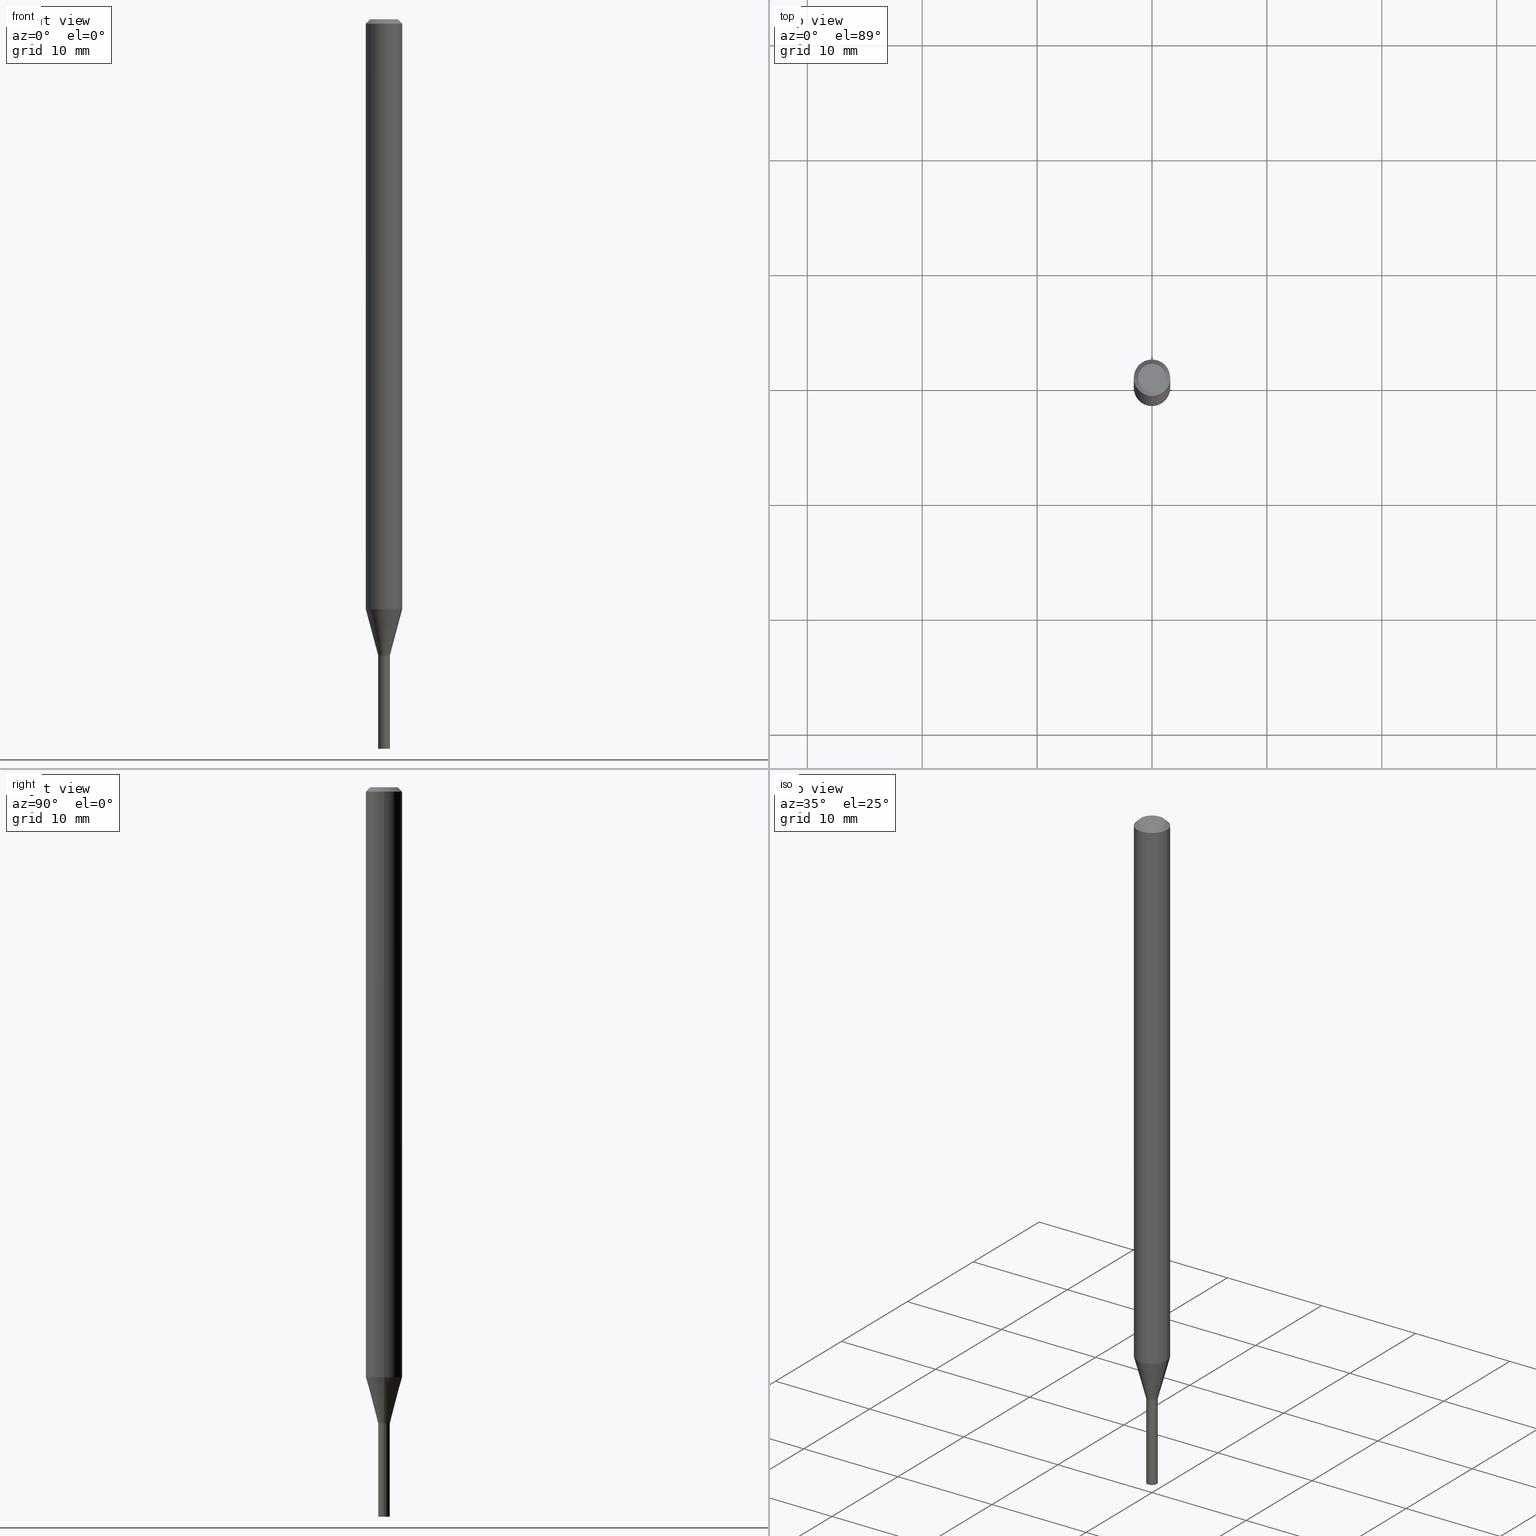
[diagram: canonical four-view strip — front | top / right | iso, engineering-drawing reading convention]
A machine part, canonical four-view strip (front | top / right | iso — engineering-drawing reading convention). The complete STEP part file that produces these views, byte-faithful:
ISO-10303-21;
HEADER;
FILE_DESCRIPTION (( 'STEP AP203' ),
    '1' );
FILE_NAME ('01262.STEP',
    '2024-03-20T00:42:51',
    ( '' ),
    ( '' ),
    'SwSTEP 2.0',
    'SolidWorks 2023',
    '' );
FILE_SCHEMA (( 'CONFIG_CONTROL_DESIGN' ));
ENDSEC;

DATA;
#1 = DIRECTION ( 'NONE',  ( -1.000000000000000000, 6.982962677686266711E-15, 0.000000000000000000 ) ) ;
#2 = ADVANCED_FACE ( 'NONE', ( #203 ), #120, .T. ) ;
#3 = AXIS2_PLACEMENT_3D ( 'NONE', #351, #27, #356 ) ;
#4 = CIRCLE ( 'NONE', #327, 0.02000000000000000042 ) ;
#5 = DIRECTION ( 'NONE',  ( -1.000000000000000000, 6.982962677686265922E-15, -4.876176775795935793E-29 ) ) ;
#6 = LINE ( 'NONE', #110, #144 ) ;
#7 = ADVANCED_FACE ( 'NONE', ( #345 ), #17, .F. ) ;
#8 = CARTESIAN_POINT ( 'NONE',  ( 3.316907271900976096E-16, 0.04749999999999999362, -4.031230090434019551E-16 ) ) ;
#9 = VERTEX_POINT ( 'NONE', #421 ) ;
#10 = CARTESIAN_POINT ( 'NONE',  ( -0.02000000000000000042, -8.027957785740939971E-15, -2.180000000000000160 ) ) ;
#11 = AXIS2_PLACEMENT_3D ( 'NONE', #242, #55, #233 ) ;
#12 = APPROVAL_PERSON_ORGANIZATION ( #454, #213, #449 ) ;
#13 = EDGE_LOOP ( 'NONE', ( #414, #155, #272, #370 ) ) ;
#14 = PERSON_AND_ORGANIZATION ( #337, #191 ) ;
#15 = DIRECTION ( 'NONE',  ( -2.445468806185136597E-29, 3.491481338843145583E-15, 1.000000000000000000 ) ) ;
#16 = EDGE_LOOP ( 'NONE', ( #300, #232, #197, #378 ) ) ;
#17 = CYLINDRICAL_SURFACE ( 'NONE', #240, 0.01999999999999992409 ) ;
#18 = ORIENTED_EDGE ( 'NONE', *, *, #84, .F. ) ;
#19 = DATE_AND_TIME ( #57, #254 ) ;
#20 = VECTOR ( 'NONE', #179, 39.37007874015748143 ) ;
#21 = CARTESIAN_POINT ( 'NONE',  ( 4.943240909580767453E-29, -7.057637924292802386E-15, -2.021387840678321890 ) ) ;
#22 = ORIENTED_EDGE ( 'NONE', *, *, #354, .F. ) ;
#23 = EDGE_LOOP ( 'NONE', ( #225, #443 ) ) ;
#24 = EDGE_CURVE ( 'NONE', #157, #348, #89, .T. ) ;
#25 = ORIENTED_EDGE ( 'NONE', *, *, #275, .T. ) ;
#26 = DIRECTION ( 'NONE',  ( 0.000000000000000000, 0.000000000000000000, 1.000000000000000000 ) ) ;
#27 = DIRECTION ( 'NONE',  ( -2.445468806185136597E-29, 3.491481338843145583E-15, 1.000000000000000000 ) ) ;
#28 = CYLINDRICAL_SURFACE ( 'NONE', #61, 0.02000000000000000042 ) ;
#29 = VECTOR ( 'NONE', #173, 39.37007874015748143 ) ;
#30 = AXIS2_PLACEMENT_3D ( 'NONE', #8, #436, #5 ) ;
#31 = DIRECTION ( 'NONE',  ( -2.445468806185136597E-29, 3.491481338843145583E-15, 1.000000000000000000 ) ) ;
#32 = SHAPE_DEFINITION_REPRESENTATION ( #415, #288 ) ;
#33 = CARTESIAN_POINT ( 'NONE',  ( 5.331121997483597646E-29, -7.611429318678056905E-15, -2.180000000000000160 ) ) ;
#34 = EDGE_CURVE ( 'NONE', #116, #263, #424, .T. ) ;
#35 = DIRECTION ( 'NONE',  ( 1.000000000000000000, -6.982962677686261189E-15, 0.000000000000000000 ) ) ;
#36 = CC_DESIGN_APPROVAL ( #118, ( #428 ) ) ;
#37 = CARTESIAN_POINT ( 'NONE',  ( 0.01999999999999965000, -7.751088572231780346E-15, -2.180000000000000160 ) ) ;
#38 = ORIENTED_EDGE ( 'NONE', *, *, #397, .T. ) ;
#39 = DESIGN_CONTEXT ( 'detailed design', #247, 'design' ) ;
#40 = DIRECTION ( 'NONE',  ( -2.445468806185136597E-29, 3.491481338843145583E-15, 1.000000000000000000 ) ) ;
#41 = CARTESIAN_POINT ( 'NONE',  ( 6.113672015462842613E-29, -8.728703347107864943E-15, -2.500000000000000000 ) ) ;
#42 = VECTOR ( 'NONE', #425, 39.37007874015748143 ) ;
#43 = CIRCLE ( 'NONE', #81, 0.01949999999999999997 ) ;
#44 = DIRECTION ( 'NONE',  ( -2.445468806185136597E-29, 3.491481338843145583E-15, 1.000000000000000000 ) ) ;
#45 = DIRECTION ( 'NONE',  ( -2.445468806185136597E-29, 3.491481338843145583E-15, 1.000000000000000000 ) ) ;
#46 = EDGE_LOOP ( 'NONE', ( #445, #38, #91, #187 ) ) ;
#47 = EDGE_LOOP ( 'NONE', ( #82, #163, #121, #195 ) ) ;
#48 = EDGE_LOOP ( 'NONE', ( #53, #236, #25, #189 ) ) ;
#49 = AXIS2_PLACEMENT_3D ( 'NONE', #151, #40, #364 ) ;
#50 = CALENDAR_DATE ( 2024, 19, 3 ) ;
#51 = PRODUCT_DEFINITION_FORMATION_WITH_SPECIFIED_SOURCE ( 'ANY', '', #194, .NOT_KNOWN. ) ;
#52 = CARTESIAN_POINT ( 'NONE',  ( 1.160510160698005575E-44, -1.656900942415126293E-30, -4.745552908967050187E-16 ) ) ;
#53 = ORIENTED_EDGE ( 'NONE', *, *, #392, .F. ) ;
#54 = CC_DESIGN_PERSON_AND_ORGANIZATION_ASSIGNMENT ( #159, #64, ( #51 ) ) ;
#55 = DIRECTION ( 'NONE',  ( -2.445468806185136597E-29, 3.491481338843145583E-15, 1.000000000000000000 ) ) ;
#56 = EDGE_LOOP ( 'NONE', ( #168, #363 ) ) ;
#57 = CALENDAR_DATE ( 2024, 19, 3 ) ;
#58 = CARTESIAN_POINT ( 'NONE',  ( 0.06249999999999999306, -7.494073091648195633E-15, -2.021387840678321890 ) ) ;
#59 = ORIENTED_EDGE ( 'NONE', *, *, #166, .T. ) ;
#60 = DATE_TIME_ROLE ( 'creation_date' ) ;
#61 = AXIS2_PLACEMENT_3D ( 'NONE', #317, #352, #172 ) ;
#62 = CARTESIAN_POINT ( 'NONE',  ( 6.194428952736783458E-29, -8.613054816532157721E-15, -2.500000000000000000 ) ) ;
#63 = CC_DESIGN_PERSON_AND_ORGANIZATION_ASSIGNMENT ( #264, #374, ( #428 ) ) ;
#64 = PERSON_AND_ORGANIZATION_ROLE ( 'creator' ) ;
#65 = FACE_OUTER_BOUND ( 'NONE', #48, .T. ) ;
#66 = DIRECTION ( 'NONE',  ( -2.445468806185136597E-29, 3.491481338843145583E-15, 1.000000000000000000 ) ) ;
#67 = FACE_OUTER_BOUND ( 'NONE', #343, .T. ) ;
#68 = CC_DESIGN_APPROVAL ( #213, ( #150 ) ) ;
#69 = LINE ( 'NONE', #223, #319 ) ;
#70 = DIRECTION ( 'NONE',  ( 2.438088387897960049E-29, -3.491481338843145188E-15, -1.000000000000000000 ) ) ;
#71 = FACE_OUTER_BOUND ( 'NONE', #271, .T. ) ;
#72 = VERTEX_POINT ( 'NONE', #385 ) ;
#73 = CC_DESIGN_DATE_AND_TIME_ASSIGNMENT ( #309, #192, ( #428 ) ) ;
#74 = CIRCLE ( 'NONE', #130, 0.02000000000000000042 ) ;
#75 = CARTESIAN_POINT ( 'NONE',  ( 0.000000000000000000, 0.000000000000000000, 0.000000000000000000 ) ) ;
#76 = EDGE_LOOP ( 'NONE', ( #410, #437, #440, #376 ) ) ;
#77 = ORIENTED_EDGE ( 'NONE', *, *, #408, .T. ) ;
#78 = CARTESIAN_POINT ( 'NONE',  ( 6.113672015462842613E-29, -8.728703347107864943E-15, -2.500000000000000000 ) ) ;
#79 = DIRECTION ( 'NONE',  ( 2.445468806185136597E-29, -3.491481338843145583E-15, -1.000000000000000000 ) ) ;
#80 = AXIS2_PLACEMENT_3D ( 'NONE', #136, #70, #396 ) ;
#81 = AXIS2_PLACEMENT_3D ( 'NONE', #294, #402, #439 ) ;
#82 = ORIENTED_EDGE ( 'NONE', *, *, #397, .F. ) ;
#83 = DIRECTION ( 'NONE',  ( 1.000000000000000000, -6.982962677686284065E-15, 0.000000000000000000 ) ) ;
#84 = EDGE_CURVE ( 'NONE', #9, #453, #156, .T. ) ;
#85 = VERTEX_POINT ( 'NONE', #99 ) ;
#86 = DIRECTION ( 'NONE',  ( 1.000000000000000000, 0.000000000000000000, 0.000000000000000000 ) ) ;
#87 = EDGE_CURVE ( 'NONE', #85, #226, #201, .T. ) ;
#88 = ORIENTED_EDGE ( 'NONE', *, *, #311, .T. ) ;
#89 = CIRCLE ( 'NONE', #170, 0.02000000000000000042 ) ;
#90 = PLANE ( 'NONE',  #207 ) ;
#91 = ORIENTED_EDGE ( 'NONE', *, *, #249, .T. ) ;
#92 = APPROVAL_DATE_TIME ( #456, #213 ) ;
#93 = DIRECTION ( 'NONE',  ( 1.000000000000000000, -6.982962677686267499E-15, 4.852736867747366768E-29 ) ) ;
#94 = ORIENTED_EDGE ( 'NONE', *, *, #139, .T. ) ;
#95 = DIRECTION ( 'NONE',  ( -2.445468806185136877E-29, 3.491481338843145188E-15, 1.000000000000000000 ) ) ;
#96 = APPROVAL_STATUS ( 'not_yet_approved' ) ;
#97 = AXIS2_PLACEMENT_3D ( 'NONE', #355, #31, #251 ) ;
#98 = CARTESIAN_POINT ( 'NONE',  ( 0.06250000000000000000, -4.888073874380388472E-16, -0.01499999999999999944 ) ) ;
#99 = CARTESIAN_POINT ( 'NONE',  ( -0.04749999999999999362, 3.578768372314202617E-16, -4.745552908967074839E-16 ) ) ;
#100 = DIRECTION ( 'NONE',  ( -2.445468806185136597E-29, 3.491481338843145583E-15, 1.000000000000000000 ) ) ;
#101 = APPROVAL ( #123, 'UNSPECIFIED' ) ;
#102 = APPROVAL_DATE_TIME ( #245, #118 ) ;
#103 = DIRECTION ( 'NONE',  ( 1.000000000000000000, -6.982962677686262766E-15, 0.000000000000000000 ) ) ;
#104 = CLOSED_SHELL ( 'NONE', ( #211, #111, #258, #286 ) ) ;
#105 = DIRECTION ( 'NONE',  ( 1.000000000000000000, -6.982962677686261189E-15, 0.000000000000000000 ) ) ;
#106 = CARTESIAN_POINT ( 'NONE',  ( -0.06250000000000000000, 3.840629472727444916E-16, -0.01499999999999999944 ) ) ;
#107 = CARTESIAN_POINT ( 'NONE',  ( 3.668203209277705088E-31, -5.237222008264718399E-17, -0.01499999999999999944 ) ) ;
#108 = CONICAL_SURFACE ( 'NONE', #297, 0.01949999999999999997, 0.7853981633980202659 ) ;
#109 = DIRECTION ( 'NONE',  ( 1.000000000000000000, -6.982962677686265922E-15, 4.876176775795935793E-29 ) ) ;
#110 = CARTESIAN_POINT ( 'NONE',  ( 0.06250000000000000000, -4.811533449433679005E-16, -0.01499999999999999944 ) ) ;
#111 = ADVANCED_FACE ( 'NONE', ( #412 ), #90, .F. ) ;
#112 = AXIS2_PLACEMENT_3D ( 'NONE', #52, #342, #93 ) ;
#113 = ORIENTED_EDGE ( 'NONE', *, *, #162, .F. ) ;
#114 = FACE_OUTER_BOUND ( 'NONE', #23, .T. ) ;
#115 = EDGE_CURVE ( 'NONE', #126, #154, #353, .T. ) ;
#116 = VERTEX_POINT ( 'NONE', #377 ) ;
#117 = PERSON_AND_ORGANIZATION_ROLE ( 'design_supplier' ) ;
#118 = APPROVAL ( #153, 'UNSPECIFIED' ) ;
#119 = ORIENTED_EDGE ( 'NONE', *, *, #24, .T. ) ;
#120 = CYLINDRICAL_SURFACE ( 'NONE', #284, 0.06250000000000000000 ) ;
#121 = ORIENTED_EDGE ( 'NONE', *, *, #218, .T. ) ;
#122 = AXIS2_PLACEMENT_3D ( 'NONE', #391, #66, #103 ) ;
#123 = APPROVAL_STATUS ( 'not_yet_approved' ) ;
#124 = AXIS2_PLACEMENT_3D ( 'NONE', #291, #256, #109 ) ;
#125 = CARTESIAN_POINT ( 'NONE',  ( 0.000000000000000000, 0.000000000000000000, 0.000000000000000000 ) ) ;
#126 = VERTEX_POINT ( 'NONE', #313 ) ;
#127 =( NAMED_UNIT ( * ) PLANE_ANGLE_UNIT ( ) SI_UNIT ( $, .RADIAN. ) );
#128 = LINE ( 'NONE', #196, #331 ) ;
#129 = PERSON_AND_ORGANIZATION_ROLE ( 'design_owner' ) ;
#130 = AXIS2_PLACEMENT_3D ( 'NONE', #78, #143, #220 ) ;
#131 = DIRECTION ( 'NONE',  ( 0.7071067811869518049, -2.468850131086492060E-15, 0.7071067811861430075 ) ) ;
#132 = CONICAL_SURFACE ( 'NONE', #268, 0.06250000000000000000, 0.7853981633974640442 ) ;
#133 = ORIENTED_EDGE ( 'NONE', *, *, #266, .T. ) ;
#134 = CARTESIAN_POINT ( 'NONE',  ( 0.02000000000000019817, -7.749342831562362786E-15, -2.179500000000000437 ) ) ;
#135 = EDGE_CURVE ( 'NONE', #9, #229, #128, .T. ) ;
#136 = CARTESIAN_POINT ( 'NONE',  ( 1.396592535537786366E-16, 0.01999999999999238845, -2.180000000000000160 ) ) ;
#137 = DIRECTION ( 'NONE',  ( -2.445468806185136877E-29, 3.491481338843145188E-15, 1.000000000000000000 ) ) ;
#138 = CIRCLE ( 'NONE', #359, 0.04749999999999999362 ) ;
#139 = EDGE_CURVE ( 'NONE', #72, #348, #457, .T. ) ;
#140 = DIRECTION ( 'NONE',  ( 1.000000000000000000, -6.982962677686258033E-15, 0.000000000000000000 ) ) ;
#141 = CARTESIAN_POINT ( 'NONE',  ( -0.01949999999999999997, -7.470224258030726439E-15, -2.180000000000000160 ) ) ;
#142 = ORIENTED_EDGE ( 'NONE', *, *, #464, .F. ) ;
#143 = DIRECTION ( 'NONE',  ( -2.445468806185136597E-29, 3.491481338843145583E-15, 1.000000000000000000 ) ) ;
#144 = VECTOR ( 'NONE', #185, 39.37007874015748143 ) ;
#145 = CARTESIAN_POINT ( 'NONE',  ( 5.331121997483598767E-29, -7.611429318678058482E-15, -2.180000000000000160 ) ) ;
#146 = PLANE ( 'NONE',  #124 ) ;
#147 = DIRECTION ( 'NONE',  ( 1.000000000000000000, -6.982962677686262766E-15, 0.000000000000000000 ) ) ;
#148 = ORIENTED_EDGE ( 'NONE', *, *, #34, .F. ) ;
#149 = AXIS2_PLACEMENT_3D ( 'NONE', #188, #252, #147 ) ;
#150 = PRODUCT_DEFINITION ( 'UNKNOWN', '', #51, #39 ) ;
#151 = CARTESIAN_POINT ( 'NONE',  ( 5.331121997483598767E-29, -7.611429318678058482E-15, -2.180000000000000160 ) ) ;
#152 = VERTEX_POINT ( 'NONE', #58 ) ;
#153 = APPROVAL_STATUS ( 'not_yet_approved' ) ;
#154 = VERTEX_POINT ( 'NONE', #98 ) ;
#155 = ORIENTED_EDGE ( 'NONE', *, *, #358, .T. ) ;
#156 = LINE ( 'NONE', #280, #259 ) ;
#157 = VERTEX_POINT ( 'NONE', #199 ) ;
#158 = CIRCLE ( 'NONE', #215, 0.06250000000000000000 ) ;
#159 = PERSON_AND_ORGANIZATION ( #337, #191 ) ;
#160 = APPROVAL_PERSON_ORGANIZATION ( #344, #101, #270 ) ;
#161 = DIRECTION ( 'NONE',  ( -2.445468806185136597E-29, 3.491481338843145583E-15, 1.000000000000000000 ) ) ;
#162 = EDGE_CURVE ( 'NONE', #453, #152, #222, .T. ) ;
#163 = ORIENTED_EDGE ( 'NONE', *, *, #87, .F. ) ;
#164 = PERSON_AND_ORGANIZATION ( #337, #191 ) ;
#165 = DIRECTION ( 'NONE',  ( -2.445468806185136597E-29, 3.491481338843145583E-15, 1.000000000000000000 ) ) ;
#166 = EDGE_CURVE ( 'NONE', #263, #229, #267, .T. ) ;
#167 = APPLICATION_PROTOCOL_DEFINITION ( 'international standard', 'config_control_design', 1994, #247 ) ;
#168 = ORIENTED_EDGE ( 'NONE', *, *, #311, .F. ) ;
#169 = CC_DESIGN_DATE_AND_TIME_ASSIGNMENT ( #19, #60, ( #150 ) ) ;
#170 = AXIS2_PLACEMENT_3D ( 'NONE', #303, #416, #338 ) ;
#171 = CC_DESIGN_APPROVAL ( #101, ( #51 ) ) ;
#172 = DIRECTION ( 'NONE',  ( 1.000000000000000000, -6.982962677686265922E-15, 4.876176775795935793E-29 ) ) ;
#173 = DIRECTION ( 'NONE',  ( -2.445468806185136877E-29, 3.491481338843145188E-15, 1.000000000000000000 ) ) ;
#174 = CARTESIAN_POINT ( 'NONE',  ( 1.160510160698005575E-44, -1.656900942415126293E-30, -4.745552908967050187E-16 ) ) ;
#175 = ADVANCED_FACE ( 'NONE', ( #65 ), #204, .T. ) ;
#176 = DIRECTION ( 'NONE',  ( 1.000000000000000000, -6.982962677686265922E-15, 4.876176775795935793E-29 ) ) ;
#177 = CONICAL_SURFACE ( 'NONE', #367, 0.01999999999999965000, 0.2617993877991501295 ) ;
#178 = AXIS2_PLACEMENT_3D ( 'NONE', #324, #79, #1 ) ;
#179 = DIRECTION ( 'NONE',  ( -0.7071067811865586750, 2.468850131082373812E-15, -0.7071067811865363595 ) ) ;
#180 = VERTEX_POINT ( 'NONE', #37 ) ;
#181 = DIRECTION ( 'NONE',  ( -2.445468806185136597E-29, 3.491481338843145583E-15, 1.000000000000000000 ) ) ;
#182 = DIRECTION ( 'NONE',  ( -2.445468806185136597E-29, 3.491481338843145583E-15, 1.000000000000000000 ) ) ;
#183 = ADVANCED_FACE ( 'NONE', ( #71 ), #108, .T. ) ;
#184 = AXIS2_PLACEMENT_3D ( 'NONE', #21, #161, #455 ) ;
#185 = DIRECTION ( 'NONE',  ( 0.7071067811865586750, -7.319954787623292333E-15, -0.7071067811865363595 ) ) ;
#186 = CARTESIAN_POINT ( 'NONE',  ( -0.06249999999999999306, -6.613548714442740559E-15, -2.021387840678321890 ) ) ;
#187 = ORIENTED_EDGE ( 'NONE', *, *, #218, .F. ) ;
#188 = CARTESIAN_POINT ( 'NONE',  ( 4.943240909580767453E-29, -7.057637924292802386E-15, -2.021387840678321890 ) ) ;
#189 = ORIENTED_EDGE ( 'NONE', *, *, #115, .F. ) ;
#190 = VERTEX_POINT ( 'NONE', #431 ) ;
#191 = ORGANIZATION ( 'UNSPECIFIED', 'UNSPECIFIED', '' ) ;
#192 = DATE_TIME_ROLE ( 'classification_date' ) ;
#193 = DIRECTION ( 'NONE',  ( 1.000000000000000000, -6.982962677686265922E-15, 4.876176775795935793E-29 ) ) ;
#194 = PRODUCT ( '01262', '01262', '', ( #305 ) ) ;
#195 = ORIENTED_EDGE ( 'NONE', *, *, #115, .T. ) ;
#196 = CARTESIAN_POINT ( 'NONE',  ( -0.01999999999999992409, 1.421085471520194978E-16, -9.837870180509774009E-31 ) ) ;
#197 = ORIENTED_EDGE ( 'NONE', *, *, #255, .T. ) ;
#198 = CALENDAR_DATE ( 2024, 19, 3 ) ;
#199 = CARTESIAN_POINT ( 'NONE',  ( 0.02000000000000000042, -7.751088572231783501E-15, -2.180000000000000160 ) ) ;
#200 = VERTEX_POINT ( 'NONE', #141 ) ;
#201 = CIRCLE ( 'NONE', #112, 0.04749999999999999362 ) ;
#202 = COORDINATED_UNIVERSAL_TIME_OFFSET ( 5, 0, .BEHIND. ) ;
#203 = FACE_OUTER_BOUND ( 'NONE', #76, .T. ) ;
#204 = CYLINDRICAL_SURFACE ( 'NONE', #3, 0.06250000000000000000 ) ;
#205 = EDGE_CURVE ( 'NONE', #200, #116, #450, .T. ) ;
#206 = FACE_OUTER_BOUND ( 'NONE', #13, .T. ) ;
#207 = AXIS2_PLACEMENT_3D ( 'NONE', #62, #244, #193 ) ;
#208 = CIRCLE ( 'NONE', #231, 0.01999999999999965000 ) ;
#209 = FACE_OUTER_BOUND ( 'NONE', #262, .T. ) ;
#210 = DIRECTION ( 'NONE',  ( 1.000000000000000000, -6.982962677686266711E-15, 0.000000000000000000 ) ) ;
#211 = ADVANCED_FACE ( 'NONE', ( #209 ), #214, .T. ) ;
#212 = DIRECTION ( 'NONE',  ( -2.445468806185136597E-29, 3.491481338843145583E-15, 1.000000000000000000 ) ) ;
#213 = APPROVAL ( #96, 'UNSPECIFIED' ) ;
#214 = CYLINDRICAL_SURFACE ( 'NONE', #333, 0.02000000000000000042 ) ;
#215 = AXIS2_PLACEMENT_3D ( 'NONE', #107, #357, #210 ) ;
#216 = CONICAL_SURFACE ( 'NONE', #178, 0.06250000000000000000, 0.7853981633974640442 ) ;
#217 = DIRECTION ( 'NONE',  ( 1.000000000000000000, -6.982962677686266711E-15, 4.876176775795935232E-29 ) ) ;
#218 = EDGE_CURVE ( 'NONE', #85, #126, #461, .T. ) ;
#219 = ORIENTED_EDGE ( 'NONE', *, *, #389, .T. ) ;
#220 = DIRECTION ( 'NONE',  ( 1.000000000000000000, -6.982962677686284065E-15, 0.000000000000000000 ) ) ;
#221 = FACE_OUTER_BOUND ( 'NONE', #47, .T. ) ;
#222 = CIRCLE ( 'NONE', #184, 0.06250000000000000000 ) ;
#223 = CARTESIAN_POINT ( 'NONE',  ( -0.01949999999999999997, -7.472873485204836851E-15, -2.180000000000000160 ) ) ;
#224 = ADVANCED_FACE ( 'NONE', ( #323 ), #386, .T. ) ;
#225 = ORIENTED_EDGE ( 'NONE', *, *, #87, .T. ) ;
#226 = VERTEX_POINT ( 'NONE', #398 ) ;
#227 = PLANE ( 'NONE',  #30 ) ;
#228 = MANIFOLD_SOLID_BREP ( 'Body-Move/Copy2[2]', #427 ) ;
#229 = VERTEX_POINT ( 'NONE', #465 ) ;
#230 = SECURITY_CLASSIFICATION_LEVEL ( 'unclassified' ) ;
#231 = AXIS2_PLACEMENT_3D ( 'NONE', #362, #181, #404 ) ;
#232 = ORIENTED_EDGE ( 'NONE', *, *, #135, .T. ) ;
#233 = DIRECTION ( 'NONE',  ( 1.000000000000000000, -6.982962677686266711E-15, 0.000000000000000000 ) ) ;
#234 = ORIENTED_EDGE ( 'NONE', *, *, #336, .T. ) ;
#235 = EDGE_CURVE ( 'NONE', #190, #157, #246, .T. ) ;
#236 = ORIENTED_EDGE ( 'NONE', *, *, #162, .T. ) ;
#237 = ORIENTED_EDGE ( 'NONE', *, *, #205, .F. ) ;
#238 = CARTESIAN_POINT ( 'NONE',  ( 0.000000000000000000, 0.000000000000000000, 0.000000000000000000 ) ) ;
#239 = CARTESIAN_POINT ( 'NONE',  ( 5.329899263080505966E-29, -7.609683578008636190E-15, -2.179500000000000437 ) ) ;
#240 = AXIS2_PLACEMENT_3D ( 'NONE', #274, #310, #315 ) ;
#241 = APPROVAL_DATE_TIME ( #349, #101 ) ;
#242 = CARTESIAN_POINT ( 'NONE',  ( 3.668203209277705088E-31, -5.237222008264718399E-17, -0.01499999999999999944 ) ) ;
#243 = EDGE_CURVE ( 'NONE', #226, #85, #138, .T. ) ;
#244 = DIRECTION ( 'NONE',  ( -2.438088387897960049E-29, 3.491481338843145188E-15, 1.000000000000000000 ) ) ;
#245 = DATE_AND_TIME ( #390, #434 ) ;
#246 = LINE ( 'NONE', #466, #29 ) ;
#247 = APPLICATION_CONTEXT ( 'configuration controlled 3d designs of mechanical parts and assemblies' ) ;
#248 = CARTESIAN_POINT ( 'NONE',  ( 0.000000000000000000, 0.000000000000000000, 0.000000000000000000 ) ) ;
#249 = EDGE_CURVE ( 'NONE', #154, #126, #158, .T. ) ;
#250 = DIRECTION ( 'NONE',  ( -2.445468806185136597E-29, 3.491481338843145583E-15, 1.000000000000000000 ) ) ;
#251 = DIRECTION ( 'NONE',  ( 1.000000000000000000, -6.982962677686258033E-15, 0.000000000000000000 ) ) ;
#252 = DIRECTION ( 'NONE',  ( -2.445468806185136597E-29, 3.491481338843145583E-15, 1.000000000000000000 ) ) ;
#253 = VECTOR ( 'NONE', #137, 39.37007874015748143 ) ;
#254 = LOCAL_TIME ( 20, 42, 51.00000000000000000, #380 ) ;
#255 = EDGE_CURVE ( 'NONE', #229, #263, #277, .T. ) ;
#256 = DIRECTION ( 'NONE',  ( -2.438088387897960049E-29, 3.491481338843145188E-15, 1.000000000000000000 ) ) ;
#257 = FACE_OUTER_BOUND ( 'NONE', #46, .T. ) ;
#258 = ADVANCED_FACE ( 'NONE', ( #206 ), #28, .T. ) ;
#259 = VECTOR ( 'NONE', #265, 39.37007874015747433 ) ;
#260 = ORIENTED_EDGE ( 'NONE', *, *, #166, .F. ) ;
#261 = DIRECTION ( 'NONE',  ( -1.000000000000000000, 6.982962677686266711E-15, 0.000000000000000000 ) ) ;
#262 = EDGE_LOOP ( 'NONE', ( #88, #94, #339, #382 ) ) ;
#263 = VERTEX_POINT ( 'NONE', #134 ) ;
#264 = PERSON_AND_ORGANIZATION ( #337, #191 ) ;
#265 = DIRECTION ( 'NONE',  ( -0.2588190451025214611, 5.211531920934551042E-15, 0.9659258262890682012 ) ) ;
#266 = EDGE_CURVE ( 'NONE', #180, #263, #281, .T. ) ;
#267 = CIRCLE ( 'NONE', #433, 0.02000000000000019817 ) ;
#268 = AXIS2_PLACEMENT_3D ( 'NONE', #371, #365, #261 ) ;
#269 = ORIENTED_EDGE ( 'NONE', *, *, #302, .F. ) ;
#270 = APPROVAL_ROLE ( '' ) ;
#271 = EDGE_LOOP ( 'NONE', ( #269, #451, #298, #373 ) ) ;
#272 = ORIENTED_EDGE ( 'NONE', *, *, #235, .T. ) ;
#273 = PERSON_AND_ORGANIZATION_ROLE ( 'creator' ) ;
#274 = CARTESIAN_POINT ( 'NONE',  ( 0.000000000000000000, 0.000000000000000000, 0.000000000000000000 ) ) ;
#275 = EDGE_CURVE ( 'NONE', #152, #154, #463, .T. ) ;
#276 = ORIENTED_EDGE ( 'NONE', *, *, #384, .F. ) ;
#277 = CIRCLE ( 'NONE', #122, 0.02000000000000019817 ) ;
#278 = COORDINATED_UNIVERSAL_TIME_OFFSET ( 5, 0, .BEHIND. ) ;
#279 = LOCAL_TIME ( 20, 42, 51.00000000000000000, #301 ) ;
#280 = CARTESIAN_POINT ( 'NONE',  ( -0.01999999999999965000, -7.469320771526039897E-15, -2.180000000000000160 ) ) ;
#281 = LINE ( 'NONE', #318, #42 ) ;
#282 = DIRECTION ( 'NONE',  ( -2.445468806185136597E-29, 3.491481338843145583E-15, 1.000000000000000000 ) ) ;
#283 = ADVANCED_FACE ( 'NONE', ( #285 ), #177, .T. ) ;
#284 = AXIS2_PLACEMENT_3D ( 'NONE', #125, #15, #419 ) ;
#285 = FACE_OUTER_BOUND ( 'NONE', #350, .T. ) ;
#286 = ADVANCED_FACE ( 'NONE', ( #67 ), #462, .F. ) ;
#287 = DIRECTION ( 'NONE',  ( 1.000000000000000000, -6.982962677686258033E-15, 0.000000000000000000 ) ) ;
#288 = ADVANCED_BREP_SHAPE_REPRESENTATION ( '01262', ( #379, #228, #292 ), #423 ) ;
#289 = DIRECTION ( 'NONE',  ( 1.000000000000000000, -6.982962677686267499E-15, 4.852736867747366768E-29 ) ) ;
#290 = CC_DESIGN_PERSON_AND_ORGANIZATION_ASSIGNMENT ( #387, #129, ( #194 ) ) ;
#291 = CARTESIAN_POINT ( 'NONE',  ( 5.331121997483598767E-29, -7.611429318678058482E-15, -2.180000000000000160 ) ) ;
#292 = AXIS2_PLACEMENT_3D ( 'NONE', #238, #26, #86 ) ;
#293 = DIRECTION ( 'NONE',  ( -2.445468806185136877E-29, 3.491481338843145188E-15, 1.000000000000000000 ) ) ;
#294 = CARTESIAN_POINT ( 'NONE',  ( 5.331121997483597646E-29, -7.611429318678056905E-15, -2.180000000000000160 ) ) ;
#295 = ADVANCED_FACE ( 'NONE', ( #426 ), #347, .T. ) ;
#296 = CARTESIAN_POINT ( 'NONE',  ( 0.01999999999999965000, -7.751088572231780346E-15, -2.180000000000000160 ) ) ;
#297 = AXIS2_PLACEMENT_3D ( 'NONE', #432, #361, #140 ) ;
#298 = ORIENTED_EDGE ( 'NONE', *, *, #34, .T. ) ;
#299 = CARTESIAN_POINT ( 'NONE',  ( -0.06250000000000000000, 4.440892098500626162E-16, -3.074334431409316114E-30 ) ) ;
#300 = ORIENTED_EDGE ( 'NONE', *, *, #336, .F. ) ;
#301 = COORDINATED_UNIVERSAL_TIME_OFFSET ( 5, 0, .BEHIND. ) ;
#302 = EDGE_CURVE ( 'NONE', #200, #229, #69, .T. ) ;
#303 = CARTESIAN_POINT ( 'NONE',  ( 5.331121997483598767E-29, -7.611429318678058482E-15, -2.180000000000000160 ) ) ;
#304 = EDGE_LOOP ( 'NONE', ( #142, #237 ) ) ;
#305 = MECHANICAL_CONTEXT ( 'NONE', #417, 'mechanical' ) ;
#306 = DIRECTION ( 'NONE',  ( -2.445468806185136877E-29, 3.491481338843145188E-15, 1.000000000000000000 ) ) ;
#307 = LOCAL_TIME ( 20, 42, 51.00000000000000000, #202 ) ;
#308 = EDGE_LOOP ( 'NONE', ( #447, #418, #133, #59 ) ) ;
#309 = DATE_AND_TIME ( #50, #279 ) ;
#310 = DIRECTION ( 'NONE',  ( -2.445468806185136597E-29, 3.491481338843145583E-15, 1.000000000000000000 ) ) ;
#311 = EDGE_CURVE ( 'NONE', #190, #72, #74, .T. ) ;
#312 = COORDINATED_UNIVERSAL_TIME_OFFSET ( 5, 0, .BEHIND. ) ;
#313 = CARTESIAN_POINT ( 'NONE',  ( -0.06250000000000000000, -3.110915862337662708E-15, -0.01499999999999999944 ) ) ;
#314 = PERSON_AND_ORGANIZATION ( #337, #191 ) ;
#315 = DIRECTION ( 'NONE',  ( 1.000000000000000000, -6.982962677686266711E-15, 4.876176775795935232E-29 ) ) ;
#316 = AXIS2_PLACEMENT_3D ( 'NONE', #395, #212, #35 ) ;
#317 = CARTESIAN_POINT ( 'NONE',  ( 0.000000000000000000, 0.000000000000000000, 0.000000000000000000 ) ) ;
#318 = CARTESIAN_POINT ( 'NONE',  ( 0.01999999999999992409, -1.396592535537247968E-16, 9.752353551591833400E-31 ) ) ;
#319 = VECTOR ( 'NONE', #325, 39.37007874015748854 ) ;
#320 = CC_DESIGN_SECURITY_CLASSIFICATION ( #428, ( #51 ) ) ;
#321 = CARTESIAN_POINT ( 'NONE',  ( 5.331121997483598767E-29, -7.611429318678058482E-15, -2.180000000000000160 ) ) ;
#322 = CC_DESIGN_PERSON_AND_ORGANIZATION_ASSIGNMENT ( #164, #117, ( #51 ) ) ;
#323 = FACE_OUTER_BOUND ( 'NONE', #332, .T. ) ;
#324 = CARTESIAN_POINT ( 'NONE',  ( 3.668203209277705088E-31, -5.237222008264718399E-17, -0.01499999999999999944 ) ) ;
#325 = DIRECTION ( 'NONE',  ( -0.7071067811869518049, 7.493145998871813553E-15, 0.7071067811861430075 ) ) ;
#326 = VECTOR ( 'NONE', #131, 39.37007874015748854 ) ;
#327 = AXIS2_PLACEMENT_3D ( 'NONE', #145, #44, #83 ) ;
#328 = FACE_OUTER_BOUND ( 'NONE', #304, .T. ) ;
#329 = ORIENTED_EDGE ( 'NONE', *, *, #464, .T. ) ;
#330 = LINE ( 'NONE', #299, #400 ) ;
#331 = VECTOR ( 'NONE', #306, 39.37007874015748143 ) ;
#332 = EDGE_LOOP ( 'NONE', ( #329, #406, #260, #148 ) ) ;
#333 = AXIS2_PLACEMENT_3D ( 'NONE', #248, #100, #176 ) ;
#334 = VECTOR ( 'NONE', #407, 39.37007874015747433 ) ;
#335 = ORIENTED_EDGE ( 'NONE', *, *, #384, .T. ) ;
#336 = EDGE_CURVE ( 'NONE', #9, #180, #460, .T. ) ;
#337 = PERSON ( 'UNSPECIFIED', 'UNSPECIFIED', 'UNSPECIFIED', ('UNSPECIFIED'), ('UNSPECIFIED'), ('UNSPECIFIED') ) ;
#338 = DIRECTION ( 'NONE',  ( 1.000000000000000000, -6.982962677686284065E-15, 0.000000000000000000 ) ) ;
#339 = ORIENTED_EDGE ( 'NONE', *, *, #24, .F. ) ;
#340 = DIMENSIONAL_EXPONENTS ( 1.000000000000000000, 0.000000000000000000, 0.000000000000000000, 0.000000000000000000, 0.000000000000000000, 0.000000000000000000, 0.000000000000000000 ) ;
#341 =( NAMED_UNIT ( * ) SI_UNIT ( $, .STERADIAN. ) SOLID_ANGLE_UNIT ( ) );
#342 = DIRECTION ( 'NONE',  ( -2.445468806185136597E-29, 3.491481338843145583E-15, 1.000000000000000000 ) ) ;
#343 = EDGE_LOOP ( 'NONE', ( #119, #219 ) ) ;
#344 = PERSON_AND_ORGANIZATION ( #337, #191 ) ;
#345 = FACE_OUTER_BOUND ( 'NONE', #308, .T. ) ;
#346 = CC_DESIGN_PERSON_AND_ORGANIZATION_ASSIGNMENT ( #314, #273, ( #150 ) ) ;
#347 = CONICAL_SURFACE ( 'NONE', #316, 0.01999999999999965000, 0.2617993877991501295 ) ;
#348 = VERTEX_POINT ( 'NONE', #10 ) ;
#349 = DATE_AND_TIME ( #198, #307 ) ;
#350 = EDGE_LOOP ( 'NONE', ( #77, #409, #22, #276 ) ) ;
#351 = CARTESIAN_POINT ( 'NONE',  ( 0.000000000000000000, 0.000000000000000000, 0.000000000000000000 ) ) ;
#352 = DIRECTION ( 'NONE',  ( -2.445468806185136597E-29, 3.491481338843145583E-15, 1.000000000000000000 ) ) ;
#353 = CIRCLE ( 'NONE', #11, 0.06250000000000000000 ) ;
#354 = EDGE_CURVE ( 'NONE', #152, #453, #375, .T. ) ;
#355 = CARTESIAN_POINT ( 'NONE',  ( 5.331121997483597646E-29, -7.611429318678056905E-15, -2.180000000000000160 ) ) ;
#356 = DIRECTION ( 'NONE',  ( 1.000000000000000000, -6.982962677686266711E-15, 4.876176775795935793E-29 ) ) ;
#357 = DIRECTION ( 'NONE',  ( -2.445468806185136597E-29, 3.491481338843145583E-15, 1.000000000000000000 ) ) ;
#358 = EDGE_CURVE ( 'NONE', #72, #190, #442, .T. ) ;
#359 = AXIS2_PLACEMENT_3D ( 'NONE', #174, #282, #289 ) ;
#360 = AXIS2_PLACEMENT_3D ( 'NONE', #41, #182, #441 ) ;
#361 = DIRECTION ( 'NONE',  ( -2.445468806185136597E-29, 3.491481338843145583E-15, 1.000000000000000000 ) ) ;
#362 = CARTESIAN_POINT ( 'NONE',  ( 5.331121997483598767E-29, -7.611429318678058482E-15, -2.180000000000000160 ) ) ;
#363 = ORIENTED_EDGE ( 'NONE', *, *, #358, .F. ) ;
#364 = DIRECTION ( 'NONE',  ( 1.000000000000000000, -6.982962677686261189E-15, 0.000000000000000000 ) ) ;
#365 = DIRECTION ( 'NONE',  ( 2.445468806185136597E-29, -3.491481338843145583E-15, -1.000000000000000000 ) ) ;
#366 = ADVANCED_FACE ( 'NONE', ( #114 ), #227, .F. ) ;
#367 = AXIS2_PLACEMENT_3D ( 'NONE', #321, #430, #105 ) ;
#368 = LOCAL_TIME ( 20, 42, 51.00000000000000000, #312 ) ;
#369 = LENGTH_MEASURE_WITH_UNIT ( LENGTH_MEASURE( 0.02539999999999999897 ), #405 );
#370 = ORIENTED_EDGE ( 'NONE', *, *, #389, .F. ) ;
#371 = CARTESIAN_POINT ( 'NONE',  ( 3.668203209277705088E-31, -5.237222008264718399E-17, -0.01499999999999999944 ) ) ;
#372 = ADVANCED_FACE ( 'NONE', ( #257 ), #132, .T. ) ;
#373 = ORIENTED_EDGE ( 'NONE', *, *, #255, .F. ) ;
#374 = PERSON_AND_ORGANIZATION_ROLE ( 'classification_officer' ) ;
#375 = CIRCLE ( 'NONE', #149, 0.06250000000000000000 ) ;
#376 = ORIENTED_EDGE ( 'NONE', *, *, #275, .F. ) ;
#377 = CARTESIAN_POINT ( 'NONE',  ( 0.01949999999999999997, -7.747597090892938916E-15, -2.180000000000000160 ) ) ;
#378 = ORIENTED_EDGE ( 'NONE', *, *, #266, .F. ) ;
#379 = MANIFOLD_SOLID_BREP ( 'Body-Move/Copy2[1]', #104 ) ;
#380 = COORDINATED_UNIVERSAL_TIME_OFFSET ( 5, 0, .BEHIND. ) ;
#381 = CARTESIAN_POINT ( 'NONE',  ( -0.02000000000000000042, 1.421085471520200401E-16, -9.837870180509812545E-31 ) ) ;
#382 = ORIENTED_EDGE ( 'NONE', *, *, #235, .F. ) ;
#383 = CALENDAR_DATE ( 2024, 19, 3 ) ;
#384 = EDGE_CURVE ( 'NONE', #180, #152, #438, .T. ) ;
#385 = CARTESIAN_POINT ( 'NONE',  ( -0.02000000000000000042, -8.027957785740939971E-15, -2.500000000000000000 ) ) ;
#386 = CONICAL_SURFACE ( 'NONE', #97, 0.01949999999999999997, 0.7853981633980202659 ) ;
#387 = PERSON_AND_ORGANIZATION ( #337, #191 ) ;
#388 = DIRECTION ( 'NONE',  ( 1.000000000000000000, -6.982962677686262766E-15, 0.000000000000000000 ) ) ;
#389 = EDGE_CURVE ( 'NONE', #348, #157, #4, .T. ) ;
#390 = CALENDAR_DATE ( 2024, 19, 3 ) ;
#391 = CARTESIAN_POINT ( 'NONE',  ( 5.329899263080505966E-29, -7.609683578008636190E-15, -2.179500000000000437 ) ) ;
#392 = EDGE_CURVE ( 'NONE', #453, #126, #330, .T. ) ;
#393 = CARTESIAN_POINT ( 'NONE',  ( 0.06250000000000000000, -4.364351673553916694E-16, 3.047610484872459871E-30 ) ) ;
#394 = APPROVAL_PERSON_ORGANIZATION ( #14, #118, #446 ) ;
#395 = CARTESIAN_POINT ( 'NONE',  ( 5.331121997483598767E-29, -7.611429318678058482E-15, -2.180000000000000160 ) ) ;
#396 = DIRECTION ( 'NONE',  ( -1.000000000000000000, 6.982962677686265922E-15, -4.876176775795935793E-29 ) ) ;
#397 = EDGE_CURVE ( 'NONE', #226, #154, #6, .T. ) ;
#398 = CARTESIAN_POINT ( 'NONE',  ( 0.04749999999999999362, -4.035134999187586019E-16, -4.745552908967024549E-16 ) ) ;
#399 = VECTOR ( 'NONE', #95, 39.37007874015748143 ) ;
#400 = VECTOR ( 'NONE', #293, 39.37007874015748143 ) ;
#401 = CYLINDRICAL_SURFACE ( 'NONE', #413, 0.01999999999999992409 ) ;
#402 = DIRECTION ( 'NONE',  ( -2.445468806185136597E-29, 3.491481338843145583E-15, 1.000000000000000000 ) ) ;
#403 = ADVANCED_FACE ( 'NONE', ( #444 ), #401, .F. ) ;
#404 = DIRECTION ( 'NONE',  ( 1.000000000000000000, -6.982962677686261189E-15, 0.000000000000000000 ) ) ;
#405 =( LENGTH_UNIT ( ) NAMED_UNIT ( * ) SI_UNIT ( $, .METRE. ) );
#406 = ORIENTED_EDGE ( 'NONE', *, *, #302, .T. ) ;
#407 = DIRECTION ( 'NONE',  ( 0.2588190451025214611, 1.565188264969621573E-15, 0.9659258262890682012 ) ) ;
#408 = EDGE_CURVE ( 'NONE', #180, #9, #208, .T. ) ;
#409 = ORIENTED_EDGE ( 'NONE', *, *, #84, .T. ) ;
#410 = ORIENTED_EDGE ( 'NONE', *, *, #354, .T. ) ;
#411 =( CONVERSION_BASED_UNIT ( 'INCH', #369 ) LENGTH_UNIT ( ) NAMED_UNIT ( #340 ) );
#412 = FACE_OUTER_BOUND ( 'NONE', #56, .T. ) ;
#413 = AXIS2_PLACEMENT_3D ( 'NONE', #75, #45, #217 ) ;
#414 = ORIENTED_EDGE ( 'NONE', *, *, #139, .F. ) ;
#415 = PRODUCT_DEFINITION_SHAPE ( 'NONE', 'NONE',  #150 ) ;
#416 = DIRECTION ( 'NONE',  ( -2.445468806185136597E-29, 3.491481338843145583E-15, 1.000000000000000000 ) ) ;
#417 = APPLICATION_CONTEXT ( 'configuration controlled 3d designs of mechanical parts and assemblies' ) ;
#418 = ORIENTED_EDGE ( 'NONE', *, *, #408, .F. ) ;
#419 = DIRECTION ( 'NONE',  ( 1.000000000000000000, -6.982962677686266711E-15, 4.876176775795935793E-29 ) ) ;
#420 = APPLICATION_PROTOCOL_DEFINITION ( 'international standard', 'config_control_design', 1994, #417 ) ;
#421 = CARTESIAN_POINT ( 'NONE',  ( -0.01999999999999965000, -7.041434742984390622E-15, -2.180000000000000160 ) ) ;
#422 = AXIS2_PLACEMENT_3D ( 'NONE', #33, #250, #287 ) ;
#423 =( GEOMETRIC_REPRESENTATION_CONTEXT ( 3 ) GLOBAL_UNCERTAINTY_ASSIGNED_CONTEXT ( ( #435 ) ) GLOBAL_UNIT_ASSIGNED_CONTEXT ( ( #411, #127, #341 ) ) REPRESENTATION_CONTEXT ( 'NONE', 'WORKASPACE' ) );
#424 = LINE ( 'NONE', #459, #326 ) ;
#425 = DIRECTION ( 'NONE',  ( -2.445468806185136877E-29, 3.491481338843145188E-15, 1.000000000000000000 ) ) ;
#426 = FACE_OUTER_BOUND ( 'NONE', #448, .T. ) ;
#427 = CLOSED_SHELL ( 'NONE', ( #403, #224, #372, #2, #283, #295, #175, #429, #366, #452, #183, #7 ) ) ;
#428 = SECURITY_CLASSIFICATION ( '', '', #230 ) ;
#429 = ADVANCED_FACE ( 'NONE', ( #221 ), #216, .T. ) ;
#430 = DIRECTION ( 'NONE',  ( -2.445468806185136597E-29, 3.491481338843145583E-15, 1.000000000000000000 ) ) ;
#431 = CARTESIAN_POINT ( 'NONE',  ( 0.02000000000000000042, -8.868362600661589961E-15, -2.500000000000000000 ) ) ;
#432 = CARTESIAN_POINT ( 'NONE',  ( 5.331121997483597646E-29, -7.611429318678056905E-15, -2.180000000000000160 ) ) ;
#433 = AXIS2_PLACEMENT_3D ( 'NONE', #239, #165, #388 ) ;
#434 = LOCAL_TIME ( 20, 42, 51.00000000000000000, #278 ) ;
#435 = UNCERTAINTY_MEASURE_WITH_UNIT (LENGTH_MEASURE( 1.000000000000000082E-05 ), #411, 'distance_accuracy_value', 'NONE');
#436 = DIRECTION ( 'NONE',  ( 2.438088387897960049E-29, -3.491481338843145188E-15, -1.000000000000000000 ) ) ;
#437 = ORIENTED_EDGE ( 'NONE', *, *, #392, .T. ) ;
#438 = LINE ( 'NONE', #296, #334 ) ;
#439 = DIRECTION ( 'NONE',  ( 1.000000000000000000, -6.982962677686258033E-15, 0.000000000000000000 ) ) ;
#440 = ORIENTED_EDGE ( 'NONE', *, *, #249, .F. ) ;
#441 = DIRECTION ( 'NONE',  ( 1.000000000000000000, -6.982962677686284065E-15, 0.000000000000000000 ) ) ;
#442 = CIRCLE ( 'NONE', #360, 0.02000000000000000042 ) ;
#443 = ORIENTED_EDGE ( 'NONE', *, *, #243, .T. ) ;
#444 = FACE_OUTER_BOUND ( 'NONE', #16, .T. ) ;
#445 = ORIENTED_EDGE ( 'NONE', *, *, #243, .F. ) ;
#446 = APPROVAL_ROLE ( '' ) ;
#447 = ORIENTED_EDGE ( 'NONE', *, *, #135, .F. ) ;
#448 = EDGE_LOOP ( 'NONE', ( #18, #234, #335, #113 ) ) ;
#449 = APPROVAL_ROLE ( '' ) ;
#450 = CIRCLE ( 'NONE', #422, 0.01949999999999999997 ) ;
#451 = ORIENTED_EDGE ( 'NONE', *, *, #205, .T. ) ;
#452 = ADVANCED_FACE ( 'NONE', ( #328 ), #146, .F. ) ;
#453 = VERTEX_POINT ( 'NONE', #186 ) ;
#454 = PERSON_AND_ORGANIZATION ( #337, #191 ) ;
#455 = DIRECTION ( 'NONE',  ( 1.000000000000000000, -6.982962677686262766E-15, 0.000000000000000000 ) ) ;
#456 = DATE_AND_TIME ( #383, #368 ) ;
#457 = LINE ( 'NONE', #381, #399 ) ;
#458 = PRODUCT_RELATED_PRODUCT_CATEGORY ( 'detail', '', ( #194 ) ) ;
#459 = CARTESIAN_POINT ( 'NONE',  ( 0.01949999999999999997, -7.747597090892938916E-15, -2.180000000000000160 ) ) ;
#460 = CIRCLE ( 'NONE', #49, 0.01999999999999965000 ) ;
#461 = LINE ( 'NONE', #106, #20 ) ;
#462 = PLANE ( 'NONE',  #80 ) ;
#463 = LINE ( 'NONE', #393, #253 ) ;
#464 = EDGE_CURVE ( 'NONE', #116, #200, #43, .T. ) ;
#465 = CARTESIAN_POINT ( 'NONE',  ( -0.02000000000000019817, -7.467575030856616027E-15, -2.179500000000000437 ) ) ;
#466 = CARTESIAN_POINT ( 'NONE',  ( 0.02000000000000000042, -1.396592535537253145E-16, 9.752353551591871936E-31 ) ) ;
ENDSEC;
END-ISO-10303-21;
